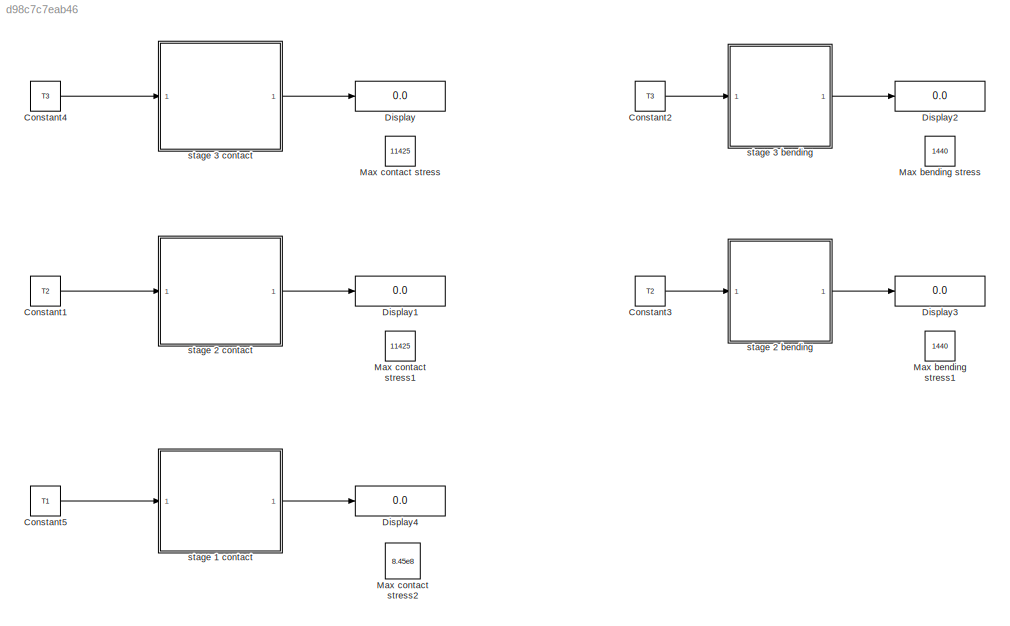
MODEL slx_d98c7c7eab46
KIND model
CONFIG AbsTol = auto
CONFIG EnableMultiTasking = off
CONFIG FixedStep = auto
CONFIG MaxStep = .01
CONFIG MinStep = auto
CONFIG RelTol = 1e-3
CONFIG SampleTimeConstraint = Unconstrained
CONFIG Solver = VariableStepAuto
CONFIG SolverName = VariableStepAuto
CONFIG StartTime = 0.0
CONFIG StopTime = 10
BLOCK [Constant] Constant1
  Value = T2
BLOCK [Constant] Constant2
  Value = T3
BLOCK [Constant] Constant3
  Value = T2
BLOCK [Constant] Constant4
  Value = T3
BLOCK [Constant] Constant5
  Value = T1
BLOCK [Display] Display
  Decimation = 1
  Ports = [1]
BLOCK [Display] Display1
  Decimation = 1
  Ports = [1]
BLOCK [Display] Display2
  Decimation = 1
  Ports = [1]
BLOCK [Display] Display3
  Decimation = 1
  Ports = [1]
BLOCK [Display] Display4
  Decimation = 1
  Ports = [1]
BLOCK [Constant] Max bending stress
  Value = 1440
BLOCK [Constant] Max bending stress1
  Value = 1440
BLOCK [Constant] Max contact stress
  Value = 11425
BLOCK [Constant] Max contact stress1
  Value = 11425
BLOCK [Constant] Max contact stress2
  Value = 8.45e8
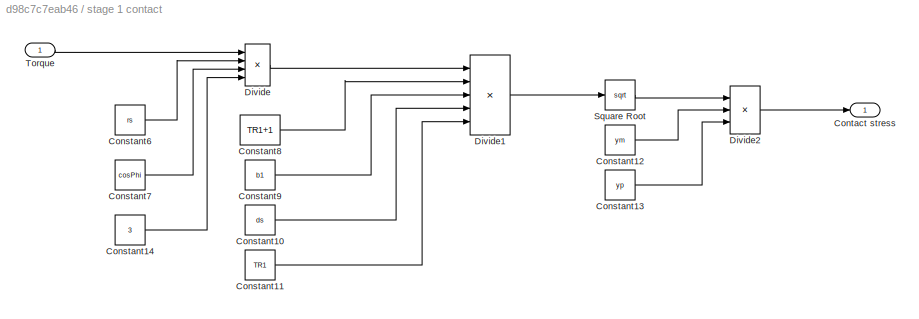
BLOCK [SubSystem] stage 1 contact
  Ports = [1, 1]
  RequestExecContextInheritance = off
BLOCK [Constant] stage 1 contact/Constant10
  Value = ds
BLOCK [Constant] stage 1 contact/Constant11
  Value = TR1
BLOCK [Constant] stage 1 contact/Constant12
  Value = ym
BLOCK [Constant] stage 1 contact/Constant13
  Value = yp
BLOCK [Constant] stage 1 contact/Constant14
  Value = 3
BLOCK [Constant] stage 1 contact/Constant6
  Value = rs
BLOCK [Constant] stage 1 contact/Constant7
  Value = cosPhi
BLOCK [Constant] stage 1 contact/Constant8
  Value = TR1+1
BLOCK [Constant] stage 1 contact/Constant9
  Value = b1
BLOCK [Outport] stage 1 contact/Contact stress
BLOCK [Product] stage 1 contact/Divide
  Inputs = */*/
  Ports = [4, 1]
BLOCK [Product] stage 1 contact/Divide1
  Inputs = **///
  Ports = [5, 1]
BLOCK [Product] stage 1 contact/Divide2
  Inputs = ***
  Ports = [3, 1]
BLOCK [Sqrt] stage 1 contact/Square Root
BLOCK [Inport] stage 1 contact/Torque
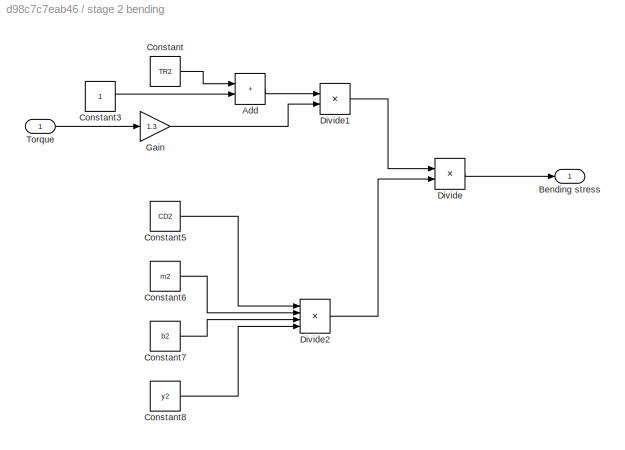
BLOCK [SubSystem] stage 2 bending
  Ports = [1, 1]
  RequestExecContextInheritance = off
BLOCK [Sum] stage 2 bending/Add
  IconShape = rectangular
  Ports = [2, 1]
BLOCK [Outport] stage 2 bending/Bending stress
BLOCK [Constant] stage 2 bending/Constant
  Value = TR2
BLOCK [Constant] stage 2 bending/Constant3
BLOCK [Constant] stage 2 bending/Constant5
  Value = CD2
BLOCK [Constant] stage 2 bending/Constant6
  Value = m2
BLOCK [Constant] stage 2 bending/Constant7
  Value = b2
BLOCK [Constant] stage 2 bending/Constant8
  Value = y2
BLOCK [Product] stage 2 bending/Divide
  Inputs = */
  Ports = [2, 1]
BLOCK [Product] stage 2 bending/Divide1
  Inputs = **
  Ports = [2, 1]
BLOCK [Product] stage 2 bending/Divide2
  Inputs = ****
  Ports = [4, 1]
BLOCK [Gain] stage 2 bending/Gain
  Gain = 1.3
BLOCK [Inport] stage 2 bending/Torque
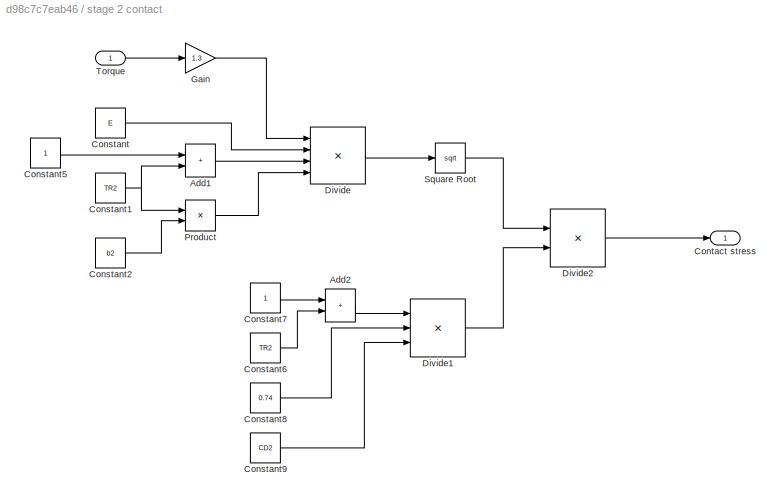
BLOCK [SubSystem] stage 2 contact
  Ports = [1, 1]
  RequestExecContextInheritance = off
BLOCK [Sum] stage 2 contact/Add1
  IconShape = rectangular
  Ports = [2, 1]
BLOCK [Sum] stage 2 contact/Add2
  IconShape = rectangular
  Ports = [2, 1]
BLOCK [Constant] stage 2 contact/Constant
  Value = E
BLOCK [Constant] stage 2 contact/Constant1
  Value = TR2
BLOCK [Constant] stage 2 contact/Constant2
  Value = b2
BLOCK [Constant] stage 2 contact/Constant5
BLOCK [Constant] stage 2 contact/Constant6
  Value = TR2
BLOCK [Constant] stage 2 contact/Constant7
BLOCK [Constant] stage 2 contact/Constant8
  Value = 0.74
BLOCK [Constant] stage 2 contact/Constant9
  Value = CD2
BLOCK [Outport] stage 2 contact/Contact stress
BLOCK [Product] stage 2 contact/Divide
  Inputs = ***/
  Ports = [4, 1]
BLOCK [Product] stage 2 contact/Divide1
  Inputs = **/
  Ports = [3, 1]
BLOCK [Product] stage 2 contact/Divide2
  Inputs = **
  Ports = [2, 1]
BLOCK [Gain] stage 2 contact/Gain
  Gain = 1.3
BLOCK [Product] stage 2 contact/Product
  Ports = [2, 1]
BLOCK [Sqrt] stage 2 contact/Square Root
BLOCK [Inport] stage 2 contact/Torque
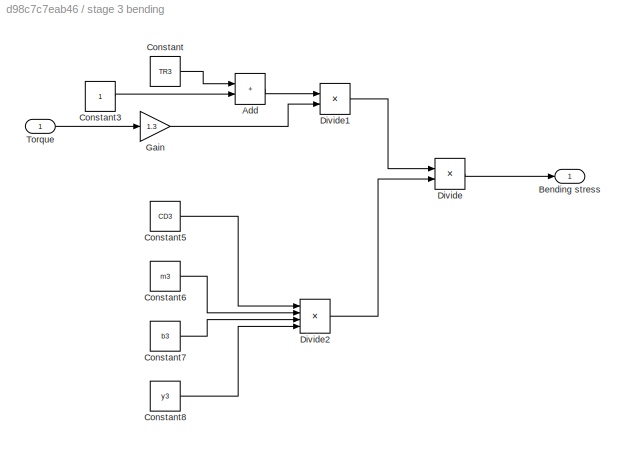
BLOCK [SubSystem] stage 3 bending
  Ports = [1, 1]
  RequestExecContextInheritance = off
BLOCK [Sum] stage 3 bending/Add
  IconShape = rectangular
  Ports = [2, 1]
BLOCK [Outport] stage 3 bending/Bending stress
BLOCK [Constant] stage 3 bending/Constant
  Value = TR3
BLOCK [Constant] stage 3 bending/Constant3
BLOCK [Constant] stage 3 bending/Constant5
  Value = CD3
BLOCK [Constant] stage 3 bending/Constant6
  Value = m3
BLOCK [Constant] stage 3 bending/Constant7
  Value = b3
BLOCK [Constant] stage 3 bending/Constant8
  Value = y3
BLOCK [Product] stage 3 bending/Divide
  Inputs = */
  Ports = [2, 1]
BLOCK [Product] stage 3 bending/Divide1
  Inputs = **
  Ports = [2, 1]
BLOCK [Product] stage 3 bending/Divide2
  Inputs = ****
  Ports = [4, 1]
BLOCK [Gain] stage 3 bending/Gain
  Gain = 1.3
BLOCK [Inport] stage 3 bending/Torque
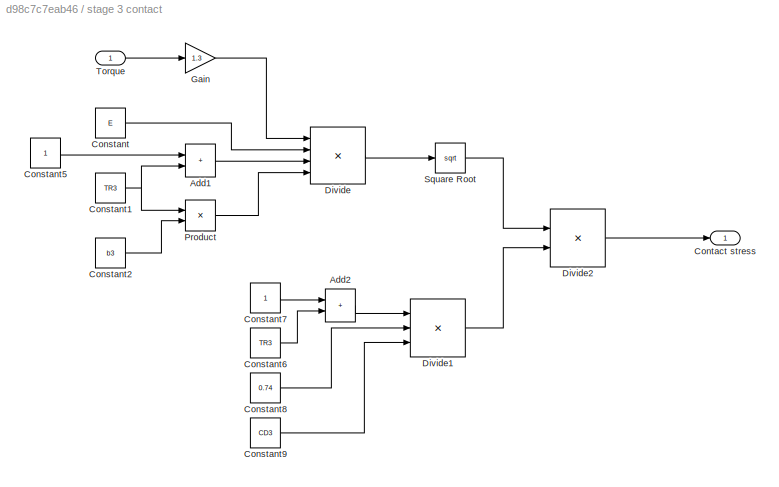
BLOCK [SubSystem] stage 3 contact
  Ports = [1, 1]
  RequestExecContextInheritance = off
BLOCK [Sum] stage 3 contact/Add1
  IconShape = rectangular
  Ports = [2, 1]
BLOCK [Sum] stage 3 contact/Add2
  IconShape = rectangular
  Ports = [2, 1]
BLOCK [Constant] stage 3 contact/Constant
  Value = E
BLOCK [Constant] stage 3 contact/Constant1
  Value = TR3
BLOCK [Constant] stage 3 contact/Constant2
  Value = b3
BLOCK [Constant] stage 3 contact/Constant5
BLOCK [Constant] stage 3 contact/Constant6
  Value = TR3
BLOCK [Constant] stage 3 contact/Constant7
BLOCK [Constant] stage 3 contact/Constant8
  Value = 0.74
BLOCK [Constant] stage 3 contact/Constant9
  Value = CD3
BLOCK [Outport] stage 3 contact/Contact stress
BLOCK [Product] stage 3 contact/Divide
  Inputs = ***/
  Ports = [4, 1]
BLOCK [Product] stage 3 contact/Divide1
  Inputs = **/
  Ports = [3, 1]
BLOCK [Product] stage 3 contact/Divide2
  Inputs = **
  Ports = [2, 1]
BLOCK [Gain] stage 3 contact/Gain
  Gain = 1.3
BLOCK [Product] stage 3 contact/Product
  Ports = [2, 1]
BLOCK [Sqrt] stage 3 contact/Square Root
BLOCK [Inport] stage 3 contact/Torque
LINE Constant1:1 -> stage 2 contact:1
LINE Constant2:1 -> stage 3 bending:1
LINE Constant3:1 -> stage 2 bending:1
LINE Constant4:1 -> stage 3 contact:1
LINE Constant5:1 -> stage 1 contact:1
LINE stage 1 contact/Constant10:1 -> stage 1 contact/Divide1:4
LINE stage 1 contact/Constant11:1 -> stage 1 contact/Divide1:5
LINE stage 1 contact/Constant12:1 -> stage 1 contact/Divide2:2
LINE stage 1 contact/Constant13:1 -> stage 1 contact/Divide2:3
LINE stage 1 contact/Constant14:1 -> stage 1 contact/Divide:4
LINE stage 1 contact/Constant6:1 -> stage 1 contact/Divide:2
LINE stage 1 contact/Constant7:1 -> stage 1 contact/Divide:3
LINE stage 1 contact/Constant8:1 -> stage 1 contact/Divide1:2
LINE stage 1 contact/Constant9:1 -> stage 1 contact/Divide1:3
LINE stage 1 contact/Divide1:1 -> stage 1 contact/Square Root:1
LINE stage 1 contact/Divide2:1 -> stage 1 contact/Contact stress:1
LINE stage 1 contact/Divide:1 -> stage 1 contact/Divide1:1
LINE stage 1 contact/Square Root:1 -> stage 1 contact/Divide2:1
LINE stage 1 contact/Torque:1 -> stage 1 contact/Divide:1
LINE stage 1 contact:1 -> Display4:1
LINE stage 2 bending/Add:1 -> stage 2 bending/Divide1:1
LINE stage 2 bending/Constant3:1 -> stage 2 bending/Add:2
LINE stage 2 bending/Constant5:1 -> stage 2 bending/Divide2:1
LINE stage 2 bending/Constant6:1 -> stage 2 bending/Divide2:2
LINE stage 2 bending/Constant7:1 -> stage 2 bending/Divide2:3
LINE stage 2 bending/Constant8:1 -> stage 2 bending/Divide2:4
LINE stage 2 bending/Constant:1 -> stage 2 bending/Add:1
LINE stage 2 bending/Divide1:1 -> stage 2 bending/Divide:1
LINE stage 2 bending/Divide2:1 -> stage 2 bending/Divide:2
LINE stage 2 bending/Divide:1 -> stage 2 bending/Bending stress:1
LINE stage 2 bending/Gain:1 -> stage 2 bending/Divide1:2
LINE stage 2 bending/Torque:1 -> stage 2 bending/Gain:1
LINE stage 2 bending:1 -> Display3:1
LINE stage 2 contact/Add1:1 -> stage 2 contact/Divide:3
LINE stage 2 contact/Add2:1 -> stage 2 contact/Divide1:1
NET stage 2 contact/Constant1:1 -> stage 2 contact/Add1:2, stage 2 contact/Product:1
LINE stage 2 contact/Constant2:1 -> stage 2 contact/Product:2
LINE stage 2 contact/Constant5:1 -> stage 2 contact/Add1:1
LINE stage 2 contact/Constant6:1 -> stage 2 contact/Add2:2
LINE stage 2 contact/Constant7:1 -> stage 2 contact/Add2:1
LINE stage 2 contact/Constant8:1 -> stage 2 contact/Divide1:2
LINE stage 2 contact/Constant9:1 -> stage 2 contact/Divide1:3
LINE stage 2 contact/Constant:1 -> stage 2 contact/Divide:2
LINE stage 2 contact/Divide1:1 -> stage 2 contact/Divide2:2
LINE stage 2 contact/Divide2:1 -> stage 2 contact/Contact stress:1
LINE stage 2 contact/Divide:1 -> stage 2 contact/Square Root:1
LINE stage 2 contact/Gain:1 -> stage 2 contact/Divide:1
LINE stage 2 contact/Product:1 -> stage 2 contact/Divide:4
LINE stage 2 contact/Square Root:1 -> stage 2 contact/Divide2:1
LINE stage 2 contact/Torque:1 -> stage 2 contact/Gain:1
LINE stage 2 contact:1 -> Display1:1
LINE stage 3 bending/Add:1 -> stage 3 bending/Divide1:1
LINE stage 3 bending/Constant3:1 -> stage 3 bending/Add:2
LINE stage 3 bending/Constant5:1 -> stage 3 bending/Divide2:1
LINE stage 3 bending/Constant6:1 -> stage 3 bending/Divide2:2
LINE stage 3 bending/Constant7:1 -> stage 3 bending/Divide2:3
LINE stage 3 bending/Constant8:1 -> stage 3 bending/Divide2:4
LINE stage 3 bending/Constant:1 -> stage 3 bending/Add:1
LINE stage 3 bending/Divide1:1 -> stage 3 bending/Divide:1
LINE stage 3 bending/Divide2:1 -> stage 3 bending/Divide:2
LINE stage 3 bending/Divide:1 -> stage 3 bending/Bending stress:1
LINE stage 3 bending/Gain:1 -> stage 3 bending/Divide1:2
LINE stage 3 bending/Torque:1 -> stage 3 bending/Gain:1
LINE stage 3 bending:1 -> Display2:1
LINE stage 3 contact/Add1:1 -> stage 3 contact/Divide:3
LINE stage 3 contact/Add2:1 -> stage 3 contact/Divide1:1
NET stage 3 contact/Constant1:1 -> stage 3 contact/Add1:2, stage 3 contact/Product:1
LINE stage 3 contact/Constant2:1 -> stage 3 contact/Product:2
LINE stage 3 contact/Constant5:1 -> stage 3 contact/Add1:1
LINE stage 3 contact/Constant6:1 -> stage 3 contact/Add2:2
LINE stage 3 contact/Constant7:1 -> stage 3 contact/Add2:1
LINE stage 3 contact/Constant8:1 -> stage 3 contact/Divide1:2
LINE stage 3 contact/Constant9:1 -> stage 3 contact/Divide1:3
LINE stage 3 contact/Constant:1 -> stage 3 contact/Divide:2
LINE stage 3 contact/Divide1:1 -> stage 3 contact/Divide2:2
LINE stage 3 contact/Divide2:1 -> stage 3 contact/Contact stress:1
LINE stage 3 contact/Divide:1 -> stage 3 contact/Square Root:1
LINE stage 3 contact/Gain:1 -> stage 3 contact/Divide:1
LINE stage 3 contact/Product:1 -> stage 3 contact/Divide:4
LINE stage 3 contact/Square Root:1 -> stage 3 contact/Divide2:1
LINE stage 3 contact/Torque:1 -> stage 3 contact/Gain:1
LINE stage 3 contact:1 -> Display:1
note: NET lines group one-source signal fan-out (src -> all destinations, sorted); 1:1 wires keep LINE
